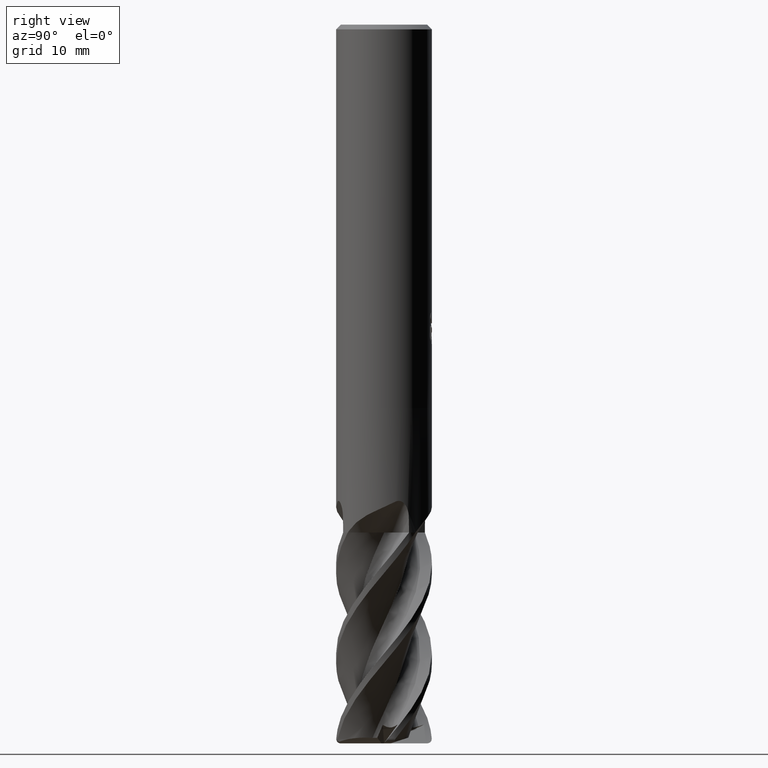
[diagram: clean part render]
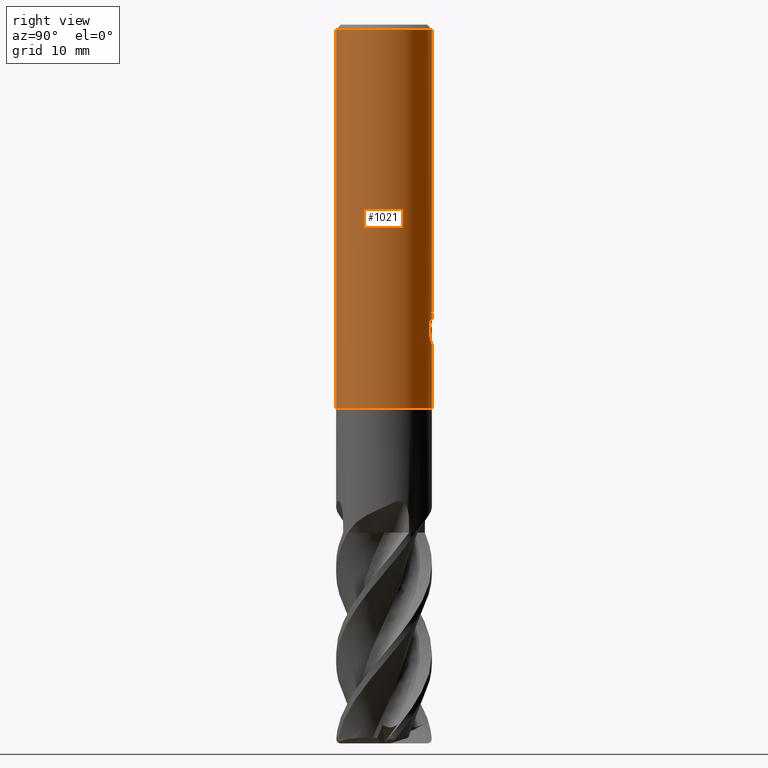
[diagram: same view with one face highlighted and labeled with its STEP entity id]
A machine part, right view. The second image highlights one B-rep face of the part: STEP entity #1021.
In plain terms, the highlighted cylindrical surface (partial cylindrical patch) has radius 5 mm, axis along (-0, -0, 1).
Its self-contained STEP definition (entity closure, byte-faithful):
#551=VERTEX_POINT('',#1586);
#557=VERTEX_POINT('',#1592);
#565=EDGE_CURVE('',#557,#671,#1600,.T.);
#597=VERTEX_POINT('',#1637);
#649=EDGE_CURVE('',#1487,#1145,#1694,.T.);
#671=VERTEX_POINT('',#1718);
#691=EDGE_CURVE('',#933,#955,#1739,.T.);
#731=EDGE_CURVE('',#1315,#551,#1783,.T.);
#749=VERTEX_POINT('',#1802);
#761=EDGE_CURVE('',#671,#597,#1814,.T.);
#829=VERTEX_POINT('',#1890);
#861=EDGE_CURVE('',#965,#937,#1925,.T.);
#913=EDGE_CURVE('',#1145,#925,#1980,.T.);
#925=VERTEX_POINT('',#1992);
#933=VERTEX_POINT('',#2000);
#937=VERTEX_POINT('',#2005);
#955=VERTEX_POINT('',#2023);
#963=VERTEX_POINT('',#2033);
#965=VERTEX_POINT('',#2035);
#975=EDGE_CURVE('',#551,#965,#2045,.T.);
#1013=EDGE_CURVE('',#963,#557,#2086,.T.);
#1021=ADVANCED_FACE('',(#2095,#2096),#2097,.T.);
#1027=EDGE_CURVE('',#829,#963,#2103,.T.);
#1145=VERTEX_POINT('',#2233);
#1179=EDGE_CURVE('',#1315,#937,#2270,.T.);
#1251=EDGE_CURVE('',#925,#933,#2348,.T.);
#1285=EDGE_CURVE('',#955,#829,#2388,.T.);
#1293=EDGE_CURVE('',#597,#749,#2397,.T.);
#1315=VERTEX_POINT('',#2420);
#1419=EDGE_CURVE('',#749,#1487,#2538,.T.);
#1487=VERTEX_POINT('',#2610);
#1586=CARTESIAN_POINT('',(0.0,5.0,-40.0));
#1592=CARTESIAN_POINT('',(1.48577410338436,4.77414655343889,-30.5723703177752));
#1600=B_SPLINE_CURVE_WITH_KNOTS('',3,(#2904,#2905,#2906,#2907,#2908,#2909,#2910,#2911,#2912,#2913),.UNSPECIFIED.,.F.,.F.,(4,2,2,2,4),(0.688597354153408,1.03289603123011,1.37719470830682,1.7210088862473,2.06482306418779),.UNSPECIFIED.);
#1637=CARTESIAN_POINT('',(0.0223606238739156,4.99995,-31.1417078471781));
#1694=ELLIPSE('',#4176,5.5746421602143,5.0);
#1718=CARTESIAN_POINT('',(0.888248591185667,4.92046892483396,-30.0001003076336));
#1739=ELLIPSE('',#4626,15.2399728668489,5.0);
#1783=LINE('',#5128,#5129);
#1802=CARTESIAN_POINT('',(0.0223606238741648,4.99995,-31.6694633442475));
#1814=B_SPLINE_CURVE_WITH_KNOTS('',3,(#5211,#5212,#5213,#5214,#5215,#5216,#5217,#5218,#5219,#5220,#5221,#5222,#5223,#5224,#5225,#5226,#5227,#5228,#5229,#5230,#5231,#5232,#5233,#5234,#5235,#5236,#5237),.UNSPECIFIED.,.F.,.F.,(4,2,3,2,2,2,2,2,2,2,2,2,4),(-0.603000499753014,-0.301500249876507,0.0,0.301500249876507,0.603000499753014,0.905281064529937,1.20756162930686,1.50852806620539,1.80949450310392,2.11084856779286,2.41220263248181,2.71355669717075,3.0149107618597),.UNSPECIFIED.);
#1890=CARTESIAN_POINT('',(0.970613384612375,4.90488630424919,-33.065330657557));
#1925=LINE('',#6153,#6154);
#1980=LINE('',#6305,#6306);
#1992=CARTESIAN_POINT('',(0.0223606238740672,4.99995,-33.3673445737425));
#2000=CARTESIAN_POINT('',(0.322333584449511,4.98959928855373,-33.3332143341042));
#2005=CARTESIAN_POINT('',(6.12303176911189E-016,-5.0,-0.5));
#2023=CARTESIAN_POINT('',(0.970613384612377,4.90488630424919,-31.4666332896417));
#2033=CARTESIAN_POINT('',(1.48577410338436,4.77414655343889,-32.5447031096319));
#2035=CARTESIAN_POINT('',(6.12303176911189E-016,-5.0,-40.0));
#2045=CIRCLE('',#6824,5.0);
#2086=LINE('',#6976,#6977);
#2095=FACE_OUTER_BOUND('',#6992,.T.);
#2096=FACE_BOUND('',#6993,.T.);
#2097=CYLINDRICAL_SURFACE('',#6994,5.0);
#2103=B_SPLINE_CURVE_WITH_KNOTS('',3,(#7007,#7008,#7009,#7010,#7011,#7012,#7013,#7014,#7015,#7016),.UNSPECIFIED.,.F.,.F.,(4,2,2,2,4),(8.95093197033612,9.29474613671826,9.63856030310039,9.98285896817616,10.3271576332519),.UNSPECIFIED.);
#2233=CARTESIAN_POINT('',(0.022360623874032,4.99995,-31.892269178928));
#2270=CIRCLE('',#7929,5.0);
#2348=B_SPLINE_CURVE_WITH_KNOTS('',3,(#8639,#8640,#8641,#8642,#8643,#8644,#8645,#8646,#8647,#8648,#8649,#8650,#8651,#8652,#8653,#8654),.UNSPECIFIED.,.F.,.F.,(4,2,2,2,2,2,2,4),(6.54109252178393,6.88549734634811,7.22994914101815,7.57440093568819,7.91885273035823,8.26330452502827,8.60711872297111,8.95093292091395),.UNSPECIFIED.);
#2388=LINE('',#8923,#8924);
#2397=LINE('',#8936,#8937);
#2420=CARTESIAN_POINT('',(0.0,5.0,-0.5));
#2538=B_SPLINE_CURVE_WITH_KNOTS('',3,(#10181,#10182,#10183,#10184,#10185,#10186,#10187,#10188,#10189,#10190,#10191,#10192,#10193,#10194),.UNSPECIFIED.,.F.,.F.,(4,2,2,2,2,2,4),(3.48518623586871,3.98268614979816,4.48018606372761,4.97768597765706,5.47391781680518,5.97014965595331,6.46980642683155),.UNSPECIFIED.);
#2610=CARTESIAN_POINT('',(0.6368014495114,4.95928260072968,-31.5893396268078));
#2904=CARTESIAN_POINT('',(1.63912812821178,4.72369124512864,-30.86309288048));
#2905=CARTESIAN_POINT('',(1.59279158459696,4.73977008264098,-30.7517799519271));
#2906=CARTESIAN_POINT('',(1.53526038014331,4.75896883133741,-30.6453188432759));
#2907=CARTESIAN_POINT('',(1.40269039422339,4.7997154529874,-30.4486688680228));
#2908=CARTESIAN_POINT('',(1.32763937660846,4.82122121041383,-30.3584795262698));
#2909=CARTESIAN_POINT('',(1.16804248723294,4.86235106679664,-30.1989546025535));
#2910=CARTESIAN_POINT('',(1.07790499937811,4.8834587638092,-30.1239894214685));
#2911=CARTESIAN_POINT('',(0.881304220445468,4.92273821733279,-29.9915334378095));
#2912=CARTESIAN_POINT('',(0.774840374268244,4.94087379672932,-29.9340327335875));
#2913=CARTESIAN_POINT('',(0.663532783508845,4.95577685587326,-29.8877293943071));
#4176=AXIS2_PLACEMENT_3D('',#11250,#11251,#11252);
#4626=AXIS2_PLACEMENT_3D('',#11288,#11289,#11290);
#5128=CARTESIAN_POINT('',(-6.12303176911189E-016,5.0,-20.25));
#5129=VECTOR('',#11356,1.0);
#5211=CARTESIAN_POINT('',(0.739090223917679,4.94507286507583,-29.793059301492));
#5212=CARTESIAN_POINT('',(0.809714115490718,4.93451742347551,-29.8637778657692));
#5213=CARTESIAN_POINT('',(0.871053529322123,4.92371633214347,-29.9533606839152));
#5214=CARTESIAN_POINT('',(0.9525321460151,4.90860461891915,-30.1499499949859));
#5215=CARTESIAN_POINT('',(0.972658030198616,4.90448125251694,-30.256976356893));
#5216=CARTESIAN_POINT('',(0.972658030198616,4.90448125251694,-30.3574764401852));
#5217=CARTESIAN_POINT('',(0.972658030198616,4.90448125251694,-30.4579765234773));
#5218=CARTESIAN_POINT('',(0.9525321460151,4.90860461891915,-30.5650028853844));
#5219=CARTESIAN_POINT('',(0.871053529322123,4.92371633214347,-30.7615921964552));
#5220=CARTESIAN_POINT('',(0.809714115490719,4.93451742347551,-30.8511750146011));
#5221=CARTESIAN_POINT('',(0.668283550158084,4.95565562528821,-30.9927951703653));
#5222=CARTESIAN_POINT('',(0.57860485054302,4.96739281956991,-31.0543047454339));
#5223=CARTESIAN_POINT('',(0.381781703919566,4.98638323105567,-31.1360227915518));
#5224=CARTESIAN_POINT('',(0.274615689105447,4.9934696192963,-31.156217997343));
#5225=CARTESIAN_POINT('',(0.0736550345331755,5.00046392535656,-31.156217997343));
#5226=CARTESIAN_POINT('',(-0.0333084125996869,5.00085705242446,-31.1361796240269));
#5227=CARTESIAN_POINT('',(-0.230021364744812,4.99567521773621,-31.0547246193692));
#5228=CARTESIAN_POINT('',(-0.319777384248839,4.99026997289342,-30.9933130123696));
#5229=CARTESIAN_POINT('',(-0.461588668494992,4.9791566455235,-30.8516230263792));
#5230=CARTESIAN_POINT('',(-0.523099346955725,4.97273104303287,-30.7618392087191));
#5231=CARTESIAN_POINT('',(-0.604720484215197,4.96346654097369,-30.5649969787532));
#5232=CARTESIAN_POINT('',(-0.624825084116949,4.96080574244328,-30.4579277950815));
#5233=CARTESIAN_POINT('',(-0.624825084116949,4.96080574244328,-30.2570250852889));
#5234=CARTESIAN_POINT('',(-0.604720484215199,4.96346654097369,-30.1499559016171));
#5235=CARTESIAN_POINT('',(-0.523099346955731,4.97273104303287,-29.9531136716512));
#5236=CARTESIAN_POINT('',(-0.461588668494991,4.9791566455235,-29.8633298539912));
#5237=CARTESIAN_POINT('',(-0.390637394524234,4.98471688524026,-29.7924392681795));
#6153=CARTESIAN_POINT('',(6.12303176911189E-016,-5.0,-20.25));
#6154=VECTOR('',#11494,1.0);
#6305=CARTESIAN_POINT('',(0.022360623874032,4.99995,-31.6841234986975));
#6306=VECTOR('',#11553,1.0);
#6824=AXIS2_PLACEMENT_3D('',#11591,#11592,#11593);
#6976=CARTESIAN_POINT('',(1.48577410338436,4.77414655343889,-31.5585367137036));
#6977=VECTOR('',#11646,1.0);
#6992=EDGE_LOOP('',(#11660,#11661,#11662,#11663));
#6993=EDGE_LOOP('',(#11664,#11665,#11666,#11667,#11668,#11669,#11670,#11671,#11672,#11673,#11674));
#6994=AXIS2_PLACEMENT_3D('',#11675,#11676,#11677);
#7007=CARTESIAN_POINT('',(0.663532808340665,4.9557768525485,-33.2293440151752));
#7008=CARTESIAN_POINT('',(0.774840395308445,4.94087379334451,-33.1830406774472));
#7009=CARTESIAN_POINT('',(0.881304237852481,4.92273821414798,-33.125539975157));
#7010=CARTESIAN_POINT('',(1.07790501007656,4.88345876137874,-32.9930839959437));
#7011=CARTESIAN_POINT('',(1.16804249485582,4.86235106491828,-32.9181188173729));
#7012=CARTESIAN_POINT('',(1.32763937869192,4.82122120979064,-32.7585938990826));
#7013=CARTESIAN_POINT('',(1.4026903936669,4.79971545311465,-32.6684045604509));
#7014=CARTESIAN_POINT('',(1.53526037493005,4.75896883298354,-32.4717545920015));
#7015=CARTESIAN_POINT('',(1.59279157736619,4.73977008505272,-32.3652934870327));
#7016=CARTESIAN_POINT('',(1.63912811935481,4.72369124820202,-32.2539805623338));
#7929=AXIS2_PLACEMENT_3D('',#11830,#11831,#11832);
#8639=CARTESIAN_POINT('',(-1.53222492214191,4.75944185676926,-32.5697494965023));
#8640=CARTESIAN_POINT('',(-1.46602953829672,4.78075238428633,-32.6679882363906));
#8641=CARTESIAN_POINT('',(-1.39109970116435,4.80329709406389,-32.7580874561206));
#8642=CARTESIAN_POINT('',(-1.23168862547006,4.84662422135611,-32.9175731791814));
#8643=CARTESIAN_POINT('',(-1.14158518892163,4.86897132411838,-32.9925797495797));
#8644=CARTESIAN_POINT('',(-0.945026646968974,4.91090858548794,-33.1251357845015));
#8645=CARTESIAN_POINT('',(-0.838570688681342,4.93046269590435,-33.1826953863995));
#8646=CARTESIAN_POINT('',(-0.61590226023856,4.96319731649047,-33.2754300728182));
#8647=CARTESIAN_POINT('',(-0.499494461180503,4.97638094124785,-33.3106783119967));
#8648=CARTESIAN_POINT('',(-0.264709162168673,4.99437594186088,-33.3570434159942));
#8649=CARTESIAN_POINT('',(-0.14632819076809,4.99917703876382,-33.3681466897615));
#8650=CARTESIAN_POINT('',(0.0830892500263585,5.00062300331422,-33.3681466897615));
#8651=CARTESIAN_POINT('',(0.201310993793807,4.99732781836603,-33.3570837397249));
#8652=CARTESIAN_POINT('',(0.435877527752523,4.98235107366299,-33.310827881912));
#8653=CARTESIAN_POINT('',(0.552225516433843,4.9706798792064,-33.2756478393409));
#8654=CARTESIAN_POINT('',(0.663533112758594,4.95577681178974,-33.2293444974826));
#8923=CARTESIAN_POINT('',(0.970613384612377,4.90488630424919,-32.2659819735993));
#8924=VECTOR('',#11974,1.0);
#8936=CARTESIAN_POINT('',(0.022360623874032,4.99995,-31.6841234986975));
#8937=VECTOR('',#11986,1.0);
#10181=CARTESIAN_POINT('',(-1.04955253534846,4.8886030188126,-29.8584179657786));
#10182=CARTESIAN_POINT('',(-1.11682369959179,4.87416032633665,-30.0203733859967));
#10183=CARTESIAN_POINT('',(-1.15010962979076,4.86592723326835,-30.196820692817));
#10184=CARTESIAN_POINT('',(-1.15010962979076,4.86592723326835,-30.5284873021034));
#10185=CARTESIAN_POINT('',(-1.11682369959179,4.87416032633665,-30.7049346089237));
#10186=CARTESIAN_POINT('',(-0.982281371105157,4.90304571128857,-31.0288454493599));
#10187=CARTESIAN_POINT('',(-0.881055810925627,4.92317724624631,-31.176368018941));
#10188=CARTESIAN_POINT('',(-0.648047522433528,4.95922342800457,-31.409027304771));
#10189=CARTESIAN_POINT('',(-0.500628335087547,4.97751559580468,-31.5099688822119));
#10190=CARTESIAN_POINT('',(-0.177088634589299,4.99949295931905,-31.6440504938811));
#10191=CARTESIAN_POINT('',(-0.000925323496746372,5.00273523331845,-31.6771594848892));
#10192=CARTESIAN_POINT('',(0.330858065435099,4.99182056917462,-31.6771594848892));
#10193=CARTESIAN_POINT('',(0.50755156831376,4.97685501334451,-31.6436400648554));
#10194=CARTESIAN_POINT('',(0.669464692169009,4.95497901367292,-31.5762561352577));
#11250=CARTESIAN_POINT('',(0.0,0.0,-31.9032933386072));
#11251=DIRECTION('',(-0.442195774284071,0.0,0.896918556617774));
#11252=DIRECTION('',(0.896918556617774,-0.0,0.442195774284071));
#11288=CARTESIAN_POINT('',(0.0,0.0,-34.2613039623419));
#11289=DIRECTION('',(0.944648353914092,0.0,-0.328084573619969));
#11290=DIRECTION('',(0.328084573619969,-0.0,0.944648353914092));
#11356=DIRECTION('',(0.0,0.0,-1.0));
#11494=DIRECTION('',(-0.0,-0.0,1.0));
#11553=DIRECTION('',(0.0,0.0,-1.0));
#11591=CARTESIAN_POINT('',(0.0,0.0,-40.0));
#11592=DIRECTION('',(0.0,0.0,-1.0));
#11593=DIRECTION('',(0.0,1.0,0.0));
#11646=DIRECTION('',(-0.0,-0.0,1.0));
#11660=ORIENTED_EDGE('',*,*,#731,.F.);
#11661=ORIENTED_EDGE('',*,*,#1179,.T.);
#11662=ORIENTED_EDGE('',*,*,#861,.F.);
#11663=ORIENTED_EDGE('',*,*,#975,.F.);
#11664=ORIENTED_EDGE('',*,*,#649,.T.);
#11665=ORIENTED_EDGE('',*,*,#913,.T.);
#11666=ORIENTED_EDGE('',*,*,#1251,.T.);
#11667=ORIENTED_EDGE('',*,*,#691,.T.);
#11668=ORIENTED_EDGE('',*,*,#1285,.T.);
#11669=ORIENTED_EDGE('',*,*,#1027,.T.);
#11670=ORIENTED_EDGE('',*,*,#1013,.T.);
#11671=ORIENTED_EDGE('',*,*,#565,.T.);
#11672=ORIENTED_EDGE('',*,*,#761,.T.);
#11673=ORIENTED_EDGE('',*,*,#1293,.T.);
#11674=ORIENTED_EDGE('',*,*,#1419,.T.);
#11675=CARTESIAN_POINT('',(0.0,0.0,-20.25));
#11676=DIRECTION('',(-0.0,-0.0,1.0));
#11677=DIRECTION('',(0.0,1.0,0.0));
#11830=CARTESIAN_POINT('',(0.0,0.0,-0.5));
#11831=DIRECTION('',(0.0,0.0,-1.0));
#11832=DIRECTION('',(0.0,1.0,0.0));
#11974=DIRECTION('',(0.0,0.0,-1.0));
#11986=DIRECTION('',(0.0,0.0,-1.0));